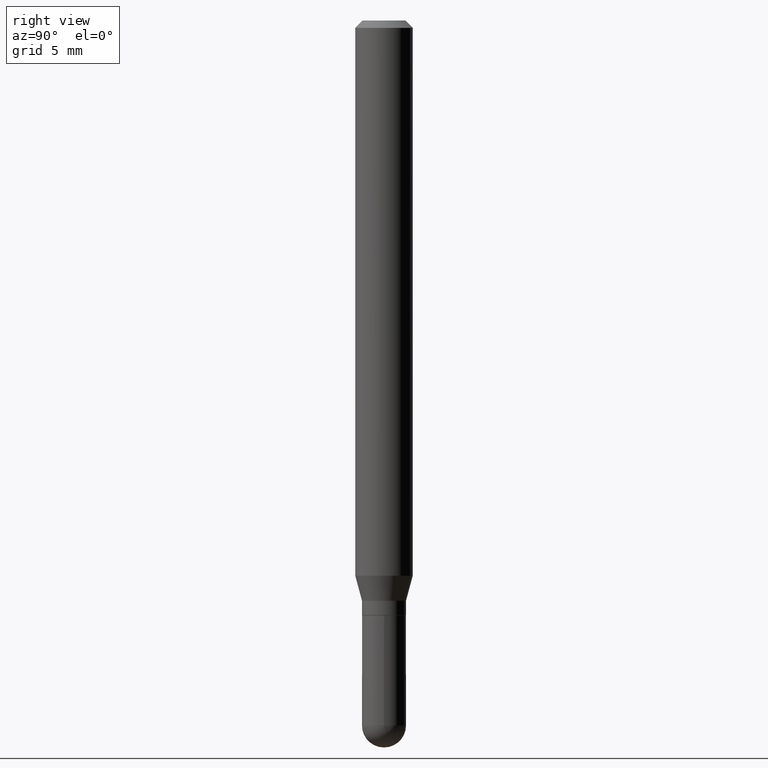
[diagram: clean part render]
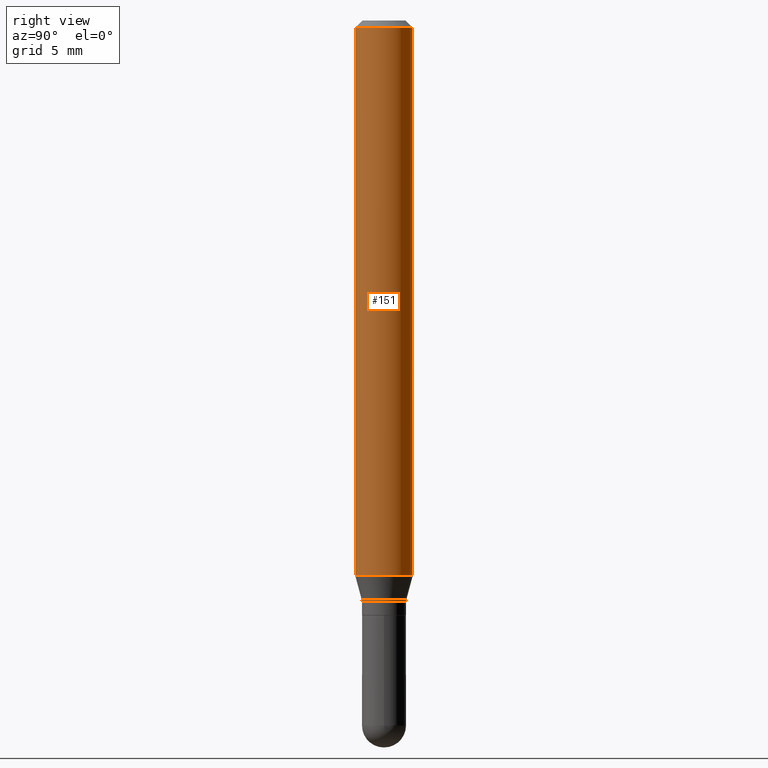
[diagram: same view with one face highlighted and labeled with its STEP entity id]
A machine part, right view. The second image highlights one B-rep face of the part: STEP entity #151.
In plain terms, the highlighted cylindrical surface (edge-blend (fillet) strip) has radius 1.4999 mm, axis along (-0, 0, 1).
Its self-contained STEP definition (entity closure, byte-faithful):
#15 = CARTESIAN_POINT ( 'NONE',  ( -4.123439461173736383E-16, -0.05905000000000005383, -0.01499999999999988495 ) ) ;
#17 = EDGE_CURVE ( 'NONE', #218, #503, #509, .T. ) ;
#48 = EDGE_CURVE ( 'NONE', #218, #253, #294, .T. ) ;
#49 = ORIENTED_EDGE ( 'NONE', *, *, #316, .T. ) ;
#50 = CIRCLE ( 'NONE', #281, 0.05904999999999999832 ) ;
#52 = ORIENTED_EDGE ( 'NONE', *, *, #48, .T. ) ;
#72 = DIRECTION ( 'NONE',  ( -2.445418673968279448E-29, 3.491553131031033645E-15, 1.000000000000000000 ) ) ;
#101 = AXIS2_PLACEMENT_3D ( 'NONE', #201, #224, #293 ) ;
#151 = ADVANCED_FACE ( 'NONE', ( #441 ), #406, .T. ) ;
#156 = EDGE_LOOP ( 'NONE', ( #52, #49, #427, #461 ) ) ;
#157 = CARTESIAN_POINT ( 'NONE',  ( 4.195754854663672017E-16, 0.05904999999999994975, -0.01500000000000029955 ) ) ;
#173 = DIRECTION ( 'NONE',  ( -2.445418673968279448E-29, 3.491553131031033645E-15, 1.000000000000000000 ) ) ;
#175 = CARTESIAN_POINT ( 'NONE',  ( 4.195754854663390985E-16, 0.05904999999999999832, -2.061762123873825338E-16 ) ) ;
#195 = DIRECTION ( 'NONE',  ( -6.982962677686265922E-15, -1.000000000000000000, 3.491553131031033645E-15 ) ) ;
#198 = CARTESIAN_POINT ( 'NONE',  ( 0.000000000000000000, 0.000000000000000000, 0.000000000000000000 ) ) ;
#201 = CARTESIAN_POINT ( 'NONE',  ( 2.794586070951398077E-29, -3.990092105632066649E-15, -1.142784301395928459 ) ) ;
#218 = VERTEX_POINT ( 'NONE', #240 ) ;
#224 = DIRECTION ( 'NONE',  ( -2.445418673968279448E-29, 3.491553131031033645E-15, 1.000000000000000000 ) ) ;
#235 = DIRECTION ( 'NONE',  ( -6.982962677686265922E-15, -1.000000000000000000, 3.505890868245046092E-15 ) ) ;
#240 = CARTESIAN_POINT ( 'NONE',  ( -4.123439461173460774E-16, -0.05905000000000398819, -1.142784301395928237 ) ) ;
#253 = VERTEX_POINT ( 'NONE', #370 ) ;
#261 = AXIS2_PLACEMENT_3D ( 'NONE', #198, #72, #195 ) ;
#281 = AXIS2_PLACEMENT_3D ( 'NONE', #451, #173, #235 ) ;
#289 = DIRECTION ( 'NONE',  ( -2.445418673968279448E-29, 3.491553131031033645E-15, 1.000000000000000000 ) ) ;
#293 = DIRECTION ( 'NONE',  ( -6.982962677686265922E-15, -1.000000000000000000, 4.626330217890369336E-15 ) ) ;
#294 = CIRCLE ( 'NONE', #101, 0.05904999999999999832 ) ;
#316 = EDGE_CURVE ( 'NONE', #253, #325, #385, .T. ) ;
#325 = VERTEX_POINT ( 'NONE', #157 ) ;
#328 = VECTOR ( 'NONE', #289, 39.37007874015748143 ) ;
#331 = CARTESIAN_POINT ( 'NONE',  ( -4.123439461173739834E-16, -0.05904999999999999832, 2.061762123873825338E-16 ) ) ;
#370 = CARTESIAN_POINT ( 'NONE',  ( 4.195754854663669552E-16, 0.05904999999999600152, -1.142784301395928681 ) ) ;
#385 = LINE ( 'NONE', #175, #328 ) ;
#405 = EDGE_CURVE ( 'NONE', #503, #325, #50, .T. ) ;
#406 = CYLINDRICAL_SURFACE ( 'NONE', #261, 0.05904999999999999832 ) ;
#427 = ORIENTED_EDGE ( 'NONE', *, *, #405, .F. ) ;
#441 = FACE_OUTER_BOUND ( 'NONE', #156, .T. ) ;
#451 = CARTESIAN_POINT ( 'NONE',  ( 3.668128010952441278E-31, -5.237329696546582811E-17, -0.01500000000000009139 ) ) ;
#461 = ORIENTED_EDGE ( 'NONE', *, *, #17, .F. ) ;
#475 = DIRECTION ( 'NONE',  ( -2.445418673968279448E-29, 3.491553131031033645E-15, 1.000000000000000000 ) ) ;
#479 = VECTOR ( 'NONE', #475, 39.37007874015748143 ) ;
#503 = VERTEX_POINT ( 'NONE', #15 ) ;
#509 = LINE ( 'NONE', #331, #479 ) ;